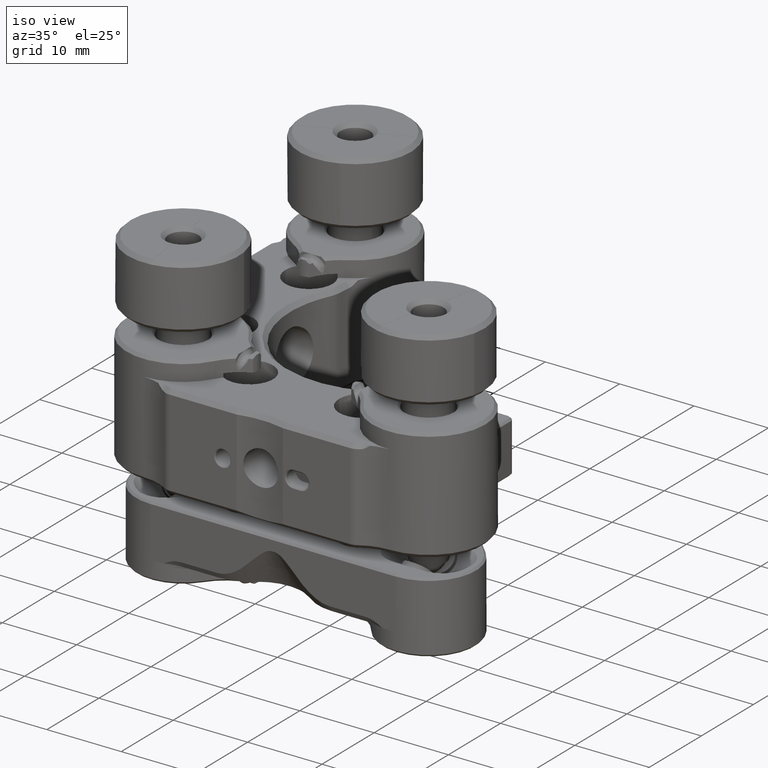
[diagram: clean part render]
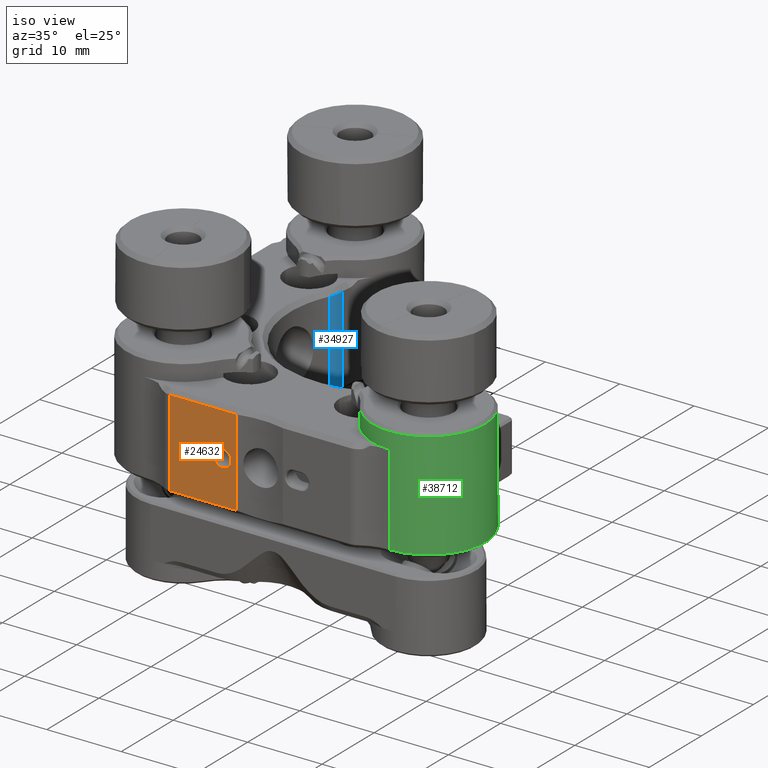
[diagram: same view with three faces highlighted in distinct colors, each labeled with its STEP entity id]
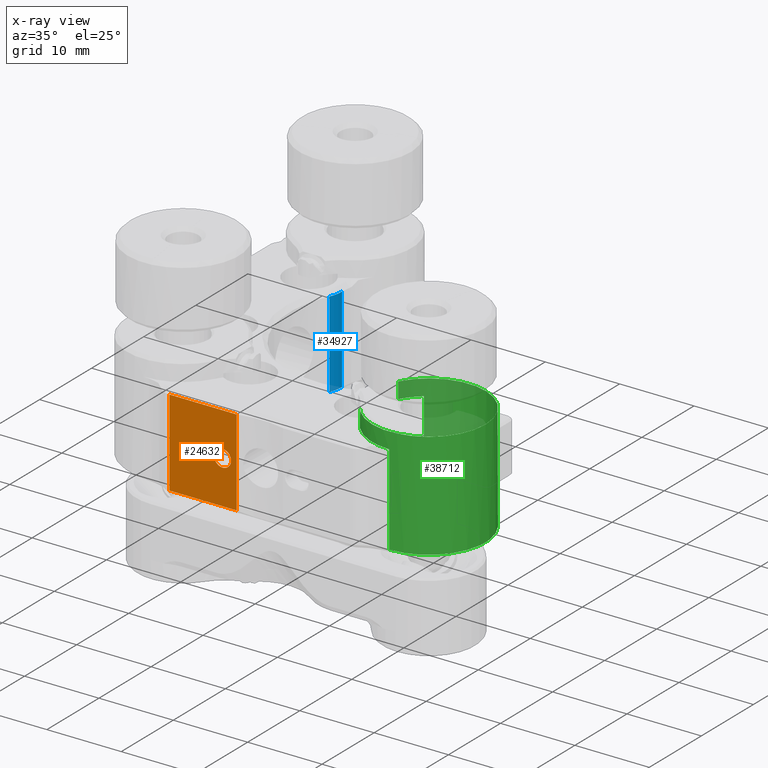
[diagram: x-ray of the same camera — body ghosted, the three highlighted faces saturated]
A machine part, iso view with three faces highlighted in distinct colors.
The next image is the same camera in x-ray (body ghosted, the three faces saturated) — at least one of them is partly hidden behind the body in this view.
Their STEP definitions:

[orange] entity #24632 — the highlighted planar face has unit normal (-0, 1, 0).
#3554 = CARTESIAN_POINT ( 'NONE',  ( 13.20522010323968765, 3.224097397248994135, 37.67726476518770795 ) ) ;
#4283 = VERTEX_POINT ( 'NONE', #27369 ) ;
#6317 = CARTESIAN_POINT ( 'NONE',  ( 22.26808663600309401, 3.224097397249097163, 37.66815044486158826 ) ) ;
#9385 = LINE ( 'NONE', #29770, #62764 ) ;
#10792 = FACE_OUTER_BOUND ( 'NONE', #58960, .T. ) ;
#11140 = ORIENTED_EDGE ( 'NONE', *, *, #48067, .F. ) ;
#11501 = CARTESIAN_POINT ( 'NONE',  ( 22.19201083773976180, 3.224097397249096719, 37.67497791269150298 ) ) ;
#12311 = AXIS2_PLACEMENT_3D ( 'NONE', #46376, #51225, #14766 ) ;
#12557 = EDGE_CURVE ( 'NONE', #56442, #4283, #34723, .T. ) ;
#13433 = EDGE_LOOP ( 'NONE', ( #40842 ) ) ;
#13895 = VECTOR ( 'NONE', #54446, 1000.000000000000000 ) ;
#13963 = CARTESIAN_POINT ( 'NONE',  ( 13.20522010324008555, 3.224097397267365217, 26.00970909684256327 ) ) ;
#14559 = DIRECTION ( 'NONE',  ( 1.000000000000000000, 1.225024136250500631E-14, -0.000000000000000000 ) ) ;
#14766 = DIRECTION ( 'NONE',  ( -1.000000000000000000, -1.225024136250500631E-14, 0.000000000000000000 ) ) ;
#14982 = B_SPLINE_CURVE_WITH_KNOTS ( 'NONE', 3,
 ( #60035, #35448, #16658, #11501, #16022, #46432, #6317 ),
 .UNSPECIFIED., .F., .F.,
 ( 4, 3, 4 ),
 ( 3.852788200805223628E-13, 7.615534923546122040E-05, 0.0001525312831660689014 ),
 .UNSPECIFIED. ) ;
#16022 = CARTESIAN_POINT ( 'NONE',  ( 22.21742399155531444, 3.224097397249097163, 37.67342564135586969 ) ) ;
#16281 = FACE_BOUND ( 'NONE', #13433, .T. ) ;
#16597 = PLANE ( 'NONE',  #12311 ) ;
#16658 = CARTESIAN_POINT ( 'NONE',  ( 22.16667294438927627, 3.224097397249096275, 37.67652558701161780 ) ) ;
#17634 = VECTOR ( 'NONE', #64020, 1000.000000000000000 ) ;
#17666 = ORIENTED_EDGE ( 'NONE', *, *, #12557, .F. ) ;
#19455 = VECTOR ( 'NONE', #55612, 1000.000000000000000 ) ;
#22356 = ORIENTED_EDGE ( 'NONE', *, *, #27112, .F. ) ;
#22991 = VERTEX_POINT ( 'NONE', #44612 ) ;
#24565 = EDGE_CURVE ( 'NONE', #33742, #33742, #43279, .T. ) ;
#24632 = ADVANCED_FACE ( 'NONE', ( #10792, #16281 ), #16597, .F. ) ;
#27112 = EDGE_CURVE ( 'NONE', #4283, #33593, #50113, .T. ) ;
#27236 = CARTESIAN_POINT ( 'NONE',  ( 22.26808663600309401, 3.224097397249097163, 37.66815044486158826 ) ) ;
#27369 = CARTESIAN_POINT ( 'NONE',  ( 22.26808663600308336, 3.224097397249094499, 26.00970909685331023 ) ) ;
#29718 = LINE ( 'NONE', #39739, #17634 ) ;
#29770 = CARTESIAN_POINT ( 'NONE',  ( 13.20522010324008555, 3.224097397248986585, 37.67726476518769374 ) ) ;
#31487 = DIRECTION ( 'NONE',  ( 0.000000000000000000, -1.000000000000000000, 0.000000000000000000 ) ) ;
#33593 = VERTEX_POINT ( 'NONE', #13963 ) ;
#33742 = VERTEX_POINT ( 'NONE', #57693 ) ;
#34406 = VERTEX_POINT ( 'NONE', #3554 ) ;
#34723 = LINE ( 'NONE', #58338, #13895 ) ;
#35448 = CARTESIAN_POINT ( 'NONE',  ( 22.14127368918376959, 3.224097397249095387, 37.67701199796599099 ) ) ;
#39739 = CARTESIAN_POINT ( 'NONE',  ( 13.20522010324008555, 3.224097397248986585, 40.74170909685329178 ) ) ;
#40842 = ORIENTED_EDGE ( 'NONE', *, *, #24565, .F. ) ;
#41218 = ORIENTED_EDGE ( 'NONE', *, *, #41672, .F. ) ;
#41672 = EDGE_CURVE ( 'NONE', #34406, #22991, #9385, .T. ) ;
#43279 = CIRCLE ( 'NONE', #61896, 1.142999999956373358 ) ;
#44612 = CARTESIAN_POINT ( 'NONE',  ( 22.11588983087386495, 3.224097401635127813, 37.67726474228278022 ) ) ;
#46376 = CARTESIAN_POINT ( 'NONE',  ( 13.20522010324008555, 3.224097397248986585, 40.74170909685329178 ) ) ;
#46432 = CARTESIAN_POINT ( 'NONE',  ( 22.24280443901282212, 3.224097397249102048, 37.67115850877338801 ) ) ;
#48067 = EDGE_CURVE ( 'NONE', #33593, #34406, #29718, .T. ) ;
#50113 = LINE ( 'NONE', #60152, #19455 ) ;
#51225 = DIRECTION ( 'NONE',  ( -1.225024136250500631E-14, 1.000000000000000000, 0.000000000000000000 ) ) ;
#54446 = DIRECTION ( 'NONE',  ( -0.000000000000000000, -0.000000000000000000, -1.000000000000000000 ) ) ;
#55441 = DIRECTION ( 'NONE',  ( 0.000000000000000000, 0.000000000000000000, -1.000000000000000000 ) ) ;
#55612 = DIRECTION ( 'NONE',  ( -1.000000000000000000, -6.699350745119177310E-15, -6.699350745119268029E-15 ) ) ;
#56442 = VERTEX_POINT ( 'NONE', #27236 ) ;
#57693 = CARTESIAN_POINT ( 'NONE',  ( 20.36735173361216766, 3.224097397335722981, 30.70870909689692141 ) ) ;
#58063 = EDGE_CURVE ( 'NONE', #22991, #56442, #14982, .T. ) ;
#58338 = CARTESIAN_POINT ( 'NONE',  ( 22.26808663600309046, 3.224097397249097607, 40.74170909685329178 ) ) ;
#58960 = EDGE_LOOP ( 'NONE', ( #41218, #11140, #22356, #17666, #59199 ) ) ;
#59199 = ORIENTED_EDGE ( 'NONE', *, *, #58063, .F. ) ;
#60035 = CARTESIAN_POINT ( 'NONE',  ( 22.11588983087386495, 3.224097401635127813, 37.67726474228278022 ) ) ;
#60152 = CARTESIAN_POINT ( 'NONE',  ( 28.47421683122138347, 3.224097397249132246, 26.00970909685335286 ) ) ;
#60938 = CARTESIAN_POINT ( 'NONE',  ( 20.36735173361216766, 3.224097397335722981, 31.85170909685329477 ) ) ;
#61896 = AXIS2_PLACEMENT_3D ( 'NONE', #60938, #31487, #55441 ) ;
#62764 = VECTOR ( 'NONE', #14559, 1000.000000000000000 ) ;
#64020 = DIRECTION ( 'NONE',  ( 0.000000000000000000, 0.000000000000000000, 1.000000000000000000 ) ) ;

[blue] entity #34927 — the highlighted cylindrical surface (partial cylindrical patch) has radius 4.4676 mm, axis along (-0, -0, -1).
#1300 = VERTEX_POINT ( 'NONE', #52665 ) ;
#1470 = CARTESIAN_POINT ( 'NONE',  ( 12.91758081580430328, 34.37189935931454698, 37.61443626234245130 ) ) ;
#3015 = DIRECTION ( 'NONE',  ( 0.000000000000000000, 0.000000000000000000, 1.000000000000000000 ) ) ;
#3999 = VERTEX_POINT ( 'NONE', #59753 ) ;
#4616 = ORIENTED_EDGE ( 'NONE', *, *, #40311, .T. ) ;
#5477 = EDGE_CURVE ( 'NONE', #24430, #5968, #42088, .T. ) ;
#5968 = VERTEX_POINT ( 'NONE', #38181 ) ;
#8186 = CARTESIAN_POINT ( 'NONE',  ( 13.32878398817777565, 36.24620216945419315, 40.74170909685329178 ) ) ;
#8879 = VECTOR ( 'NONE', #46946, 1000.000000000000000 ) ;
#10208 = CARTESIAN_POINT ( 'NONE',  ( 13.32886005689291942, 36.08473716884030580, 37.61209175667095650 ) ) ;
#11176 = CARTESIAN_POINT ( 'NONE',  ( 13.28544713210314931, 35.60267511960938691, 37.61336468931036592 ) ) ;
#12158 = ORIENTED_EDGE ( 'NONE', *, *, #21709, .T. ) ;
#19612 = CARTESIAN_POINT ( 'NONE',  ( 12.91758081580430328, 34.37189935931454698, 37.61443626234245130 ) ) ;
#20799 = VECTOR ( 'NONE', #3015, 1000.000000000000000 ) ;
#21709 = EDGE_CURVE ( 'NONE', #5968, #3999, #58765, .T. ) ;
#24430 = VERTEX_POINT ( 'NONE', #19612 ) ;
#25456 = CARTESIAN_POINT ( 'NONE',  ( 8.861151733612530279, 36.24409739724925572, 26.00970909685333154 ) ) ;
#26059 = CARTESIAN_POINT ( 'NONE',  ( 13.14725708436439611, 34.97328815005720060, 37.61338099199227969 ) ) ;
#30913 = CARTESIAN_POINT ( 'NONE',  ( 13.19044243423517671, 35.12923860083885330, 37.61321461623605700 ) ) ;
#33468 = DIRECTION ( 'NONE',  ( -0.000000000000000000, -0.000000000000000000, -1.000000000000000000 ) ) ;
#34808 = CARTESIAN_POINT ( 'NONE',  ( 13.25946574519857712, 35.44378373254195225, 37.61321620768441676 ) ) ;
#34927 = ADVANCED_FACE ( 'NONE', ( #38010 ), #63235, .T. ) ;
#35006 = EDGE_LOOP ( 'NONE', ( #12158, #4616, #39548, #46161 ) ) ;
#35772 = CARTESIAN_POINT ( 'NONE',  ( 13.32878398817777565, 36.24620216945418605, 37.61443626234245130 ) ) ;
#35814 = DIRECTION ( 'NONE',  ( -1.000000000000000000, 0.000000000000000000, 0.000000000000000000 ) ) ;
#37230 = CARTESIAN_POINT ( 'NONE',  ( 12.91758081580429973, 34.37189935931453988, 40.74170909685329178 ) ) ;
#37311 = LINE ( 'NONE', #8186, #20799 ) ;
#38010 = FACE_OUTER_BOUND ( 'NONE', #35006, .T. ) ;
#38181 = CARTESIAN_POINT ( 'NONE',  ( 12.91758081576982420, 34.37189935932889284, 26.00970909681416998 ) ) ;
#39548 = ORIENTED_EDGE ( 'NONE', *, *, #47102, .T. ) ;
#40311 = EDGE_CURVE ( 'NONE', #3999, #1300, #37311, .T. ) ;
#42088 = LINE ( 'NONE', #37230, #8879 ) ;
#42859 = DIRECTION ( 'NONE',  ( -1.000000000000000000, 0.000000000000000000, 0.000000000000000000 ) ) ;
#46161 = ORIENTED_EDGE ( 'NONE', *, *, #5477, .T. ) ;
#46946 = DIRECTION ( 'NONE',  ( -0.000000000000000000, -0.000000000000000000, -1.000000000000000000 ) ) ;
#47102 = EDGE_CURVE ( 'NONE', #1300, #24430, #61414, .T. ) ;
#48360 = CARTESIAN_POINT ( 'NONE',  ( 8.861151733612530279, 36.24409739724925572, 40.74170909685329178 ) ) ;
#50367 = DIRECTION ( 'NONE',  ( 0.000000000000000000, 0.000000000000000000, 1.000000000000000000 ) ) ;
#50645 = CARTESIAN_POINT ( 'NONE',  ( 12.98524410734789569, 34.51850315765899779, 37.61213357800246371 ) ) ;
#52665 = CARTESIAN_POINT ( 'NONE',  ( 13.32878398817777565, 36.24620216945418605, 37.61443626234245130 ) ) ;
#54537 = CARTESIAN_POINT ( 'NONE',  ( 13.04468351758693778, 34.66811610517485320, 37.61405474631823154 ) ) ;
#55498 = CARTESIAN_POINT ( 'NONE',  ( 13.32020681930699979, 35.92372253228590040, 37.61406987381476341 ) ) ;
#56111 = AXIS2_PLACEMENT_3D ( 'NONE', #48360, #33468, #42859 ) ;
#58765 = CIRCLE ( 'NONE', #60807, 4.467632750360952976 ) ;
#59753 = CARTESIAN_POINT ( 'NONE',  ( 13.32878382687782448, 36.24688682986094079, 26.00970909684721732 ) ) ;
#60807 = AXIS2_PLACEMENT_3D ( 'NONE', #25456, #50367, #35814 ) ;
#61414 = B_SPLINE_CURVE_WITH_KNOTS ( 'NONE', 3,
 ( #35772, #10208, #55498, #11176, #34808, #30913, #26059, #54537, #50645, #1470 ),
 .UNSPECIFIED., .F., .F.,
 ( 4, 2, 2, 2, 4 ),
 ( 0.000000000000000000, 0.0004837009051559556616, 0.0009674018103119113232, 0.001451102715467866931, 0.001934803620623822646 ),
 .UNSPECIFIED. ) ;
#63235 = CYLINDRICAL_SURFACE ( 'NONE', #56111, 4.467632750360952976 ) ;

[green] entity #38712 — the highlighted cylindrical surface (partial cylindrical patch) has radius 7.62 mm, axis along (-0, -0, -1).
#1334 = EDGE_CURVE ( 'NONE', #63899, #62554, #12156, .T. ) ;
#3752 = DIRECTION ( 'NONE',  ( -0.000000000000000000, -0.000000000000000000, -1.000000000000000000 ) ) ;
#3954 = DIRECTION ( 'NONE',  ( -0.000000000000000000, -0.000000000000000000, -1.000000000000000000 ) ) ;
#4056 = CARTESIAN_POINT ( 'NONE',  ( 37.07853345739173534, 18.03011444361667159, 38.20170909685329264 ) ) ;
#4516 = CARTESIAN_POINT ( 'NONE',  ( 35.19131634220174476, 15.76245352512777664, 40.74170909685329178 ) ) ;
#7871 = VERTEX_POINT ( 'NONE', #4056 ) ;
#8234 = CARTESIAN_POINT ( 'NONE',  ( 41.88115173361249788, 4.494097397225560897, 26.00970909686026999 ) ) ;
#8621 = DIRECTION ( 'NONE',  ( 0.000000000000000000, 0.000000000000000000, 1.000000000000000000 ) ) ;
#8670 = CARTESIAN_POINT ( 'NONE',  ( 41.88115173361250498, 4.494097397249060322, 38.20170909685330685 ) ) ;
#11153 = AXIS2_PLACEMENT_3D ( 'NONE', #26324, #25357, #45093 ) ;
#12156 = CIRCLE ( 'NONE', #28695, 7.620000000000015206 ) ;
#13862 = EDGE_CURVE ( 'NONE', #63899, #7871, #51670, .T. ) ;
#14335 = ORIENTED_EDGE ( 'NONE', *, *, #26741, .T. ) ;
#14566 = CARTESIAN_POINT ( 'NONE',  ( 35.19131634220192950, 8.465741269370161248, 38.20170909685329264 ) ) ;
#14846 = CARTESIAN_POINT ( 'NONE',  ( 35.19131634220195792, 8.465741269370088418, 40.74170909685329178 ) ) ;
#15159 = LINE ( 'NONE', #14846, #34987 ) ;
#16338 = DIRECTION ( 'NONE',  ( 0.000000000000000000, 0.000000000000000000, 1.000000000000000000 ) ) ;
#17507 = VECTOR ( 'NONE', #53047, 1000.000000000000000 ) ;
#18123 = ORIENTED_EDGE ( 'NONE', *, *, #1334, .F. ) ;
#18770 = CARTESIAN_POINT ( 'NONE',  ( 41.88115173361249788, 4.494097397249046111, 40.74170909685329178 ) ) ;
#19248 = FACE_OUTER_BOUND ( 'NONE', #58330, .T. ) ;
#19724 = AXIS2_PLACEMENT_3D ( 'NONE', #26380, #16338, #36090 ) ;
#20014 = DIRECTION ( 'NONE',  ( -0.000000000000000000, -0.000000000000000000, -1.000000000000000000 ) ) ;
#20773 = CARTESIAN_POINT ( 'NONE',  ( 35.19131634220198634, 8.465741269370097299, 40.36070909685334129 ) ) ;
#20807 = CIRCLE ( 'NONE', #19724, 7.620000000000022311 ) ;
#21866 = AXIS2_PLACEMENT_3D ( 'NONE', #24437, #3752, #59377 ) ;
#22716 = CARTESIAN_POINT ( 'NONE',  ( 35.19131634220186555, 15.76245352512778375, 38.20170909685330685 ) ) ;
#23003 = ORIENTED_EDGE ( 'NONE', *, *, #46936, .T. ) ;
#23079 = EDGE_CURVE ( 'NONE', #53385, #54096, #15159, .T. ) ;
#23318 = DIRECTION ( 'NONE',  ( -0.000000000000000000, -0.000000000000000000, -1.000000000000000000 ) ) ;
#24437 = CARTESIAN_POINT ( 'NONE',  ( 41.88115173361241261, 12.11409739724913237, 40.74170909685329178 ) ) ;
#25154 = VERTEX_POINT ( 'NONE', #22716 ) ;
#25357 = DIRECTION ( 'NONE',  ( 0.000000000000000000, 0.000000000000000000, 1.000000000000000000 ) ) ;
#25506 = CARTESIAN_POINT ( 'NONE',  ( 35.19131634221706406, 15.76245352512070674, 40.36070909683668617 ) ) ;
#26324 = CARTESIAN_POINT ( 'NONE',  ( 41.88115173361241261, 12.11409739724913237, 38.20170909685329264 ) ) ;
#26380 = CARTESIAN_POINT ( 'NONE',  ( 41.88115173361241261, 12.11409739724913237, 38.20170909685329264 ) ) ;
#26741 = EDGE_CURVE ( 'NONE', #25154, #59935, #48838, .T. ) ;
#28030 = ORIENTED_EDGE ( 'NONE', *, *, #13862, .T. ) ;
#28695 = AXIS2_PLACEMENT_3D ( 'NONE', #38099, #38419, #33886 ) ;
#33886 = DIRECTION ( 'NONE',  ( 1.000000000000000000, 0.000000000000000000, 0.000000000000000000 ) ) ;
#34987 = VECTOR ( 'NONE', #20014, 1000.000000000000000 ) ;
#35924 = CIRCLE ( 'NONE', #11153, 7.620000000000022311 ) ;
#36090 = DIRECTION ( 'NONE',  ( -1.000000000000000000, -7.967889981520744942E-15, 0.000000000000000000 ) ) ;
#37167 = EDGE_CURVE ( 'NONE', #54096, #51816, #35924, .T. ) ;
#37793 = EDGE_CURVE ( 'NONE', #59935, #53385, #54566, .T. ) ;
#37885 = LINE ( 'NONE', #18770, #56046 ) ;
#38099 = CARTESIAN_POINT ( 'NONE',  ( 41.88115173361241261, 12.11409739724913237, 26.00970909685332444 ) ) ;
#38419 = DIRECTION ( 'NONE',  ( 0.000000000000000000, 0.000000000000000000, -1.000000000000000000 ) ) ;
#38712 = ADVANCED_FACE ( 'NONE', ( #19248 ), #38994, .T. ) ;
#38883 = DIRECTION ( 'NONE',  ( -1.000000000000000000, 0.000000000000000000, 0.000000000000000000 ) ) ;
#38994 = CYLINDRICAL_SURFACE ( 'NONE', #21866, 7.620000000000022311 ) ;
#41655 = ORIENTED_EDGE ( 'NONE', *, *, #37167, .T. ) ;
#41854 = ORIENTED_EDGE ( 'NONE', *, *, #53842, .T. ) ;
#45093 = DIRECTION ( 'NONE',  ( -1.000000000000000000, 0.000000000000000000, 0.000000000000000000 ) ) ;
#46794 = VECTOR ( 'NONE', #8621, 1000.000000000000000 ) ;
#46936 = EDGE_CURVE ( 'NONE', #7871, #25154, #20807, .T. ) ;
#48838 = LINE ( 'NONE', #4516, #17507 ) ;
#51625 = ORIENTED_EDGE ( 'NONE', *, *, #23079, .T. ) ;
#51670 = LINE ( 'NONE', #57165, #46794 ) ;
#51816 = VERTEX_POINT ( 'NONE', #8670 ) ;
#52494 = AXIS2_PLACEMENT_3D ( 'NONE', #57976, #3954, #38883 ) ;
#53047 = DIRECTION ( 'NONE',  ( 0.000000000000000000, 0.000000000000000000, 1.000000000000000000 ) ) ;
#53385 = VERTEX_POINT ( 'NONE', #20773 ) ;
#53842 = EDGE_CURVE ( 'NONE', #51816, #62554, #37885, .T. ) ;
#54096 = VERTEX_POINT ( 'NONE', #14566 ) ;
#54566 = CIRCLE ( 'NONE', #52494, 7.620000000000022311 ) ;
#55440 = CARTESIAN_POINT ( 'NONE',  ( 37.07853345738199380, 18.03011444361563420, 26.00970909687101340 ) ) ;
#56046 = VECTOR ( 'NONE', #23318, 1000.000000000000000 ) ;
#57165 = CARTESIAN_POINT ( 'NONE',  ( 37.07853345739172823, 18.03011444361667870, 40.74170909685329178 ) ) ;
#57976 = CARTESIAN_POINT ( 'NONE',  ( 41.88115173361241261, 12.11409739724913237, 40.36070909685331287 ) ) ;
#58330 = EDGE_LOOP ( 'NONE', ( #28030, #23003, #14335, #60559, #51625, #41655, #41854, #18123 ) ) ;
#59377 = DIRECTION ( 'NONE',  ( -1.000000000000000000, 0.000000000000000000, 0.000000000000000000 ) ) ;
#59935 = VERTEX_POINT ( 'NONE', #25506 ) ;
#60559 = ORIENTED_EDGE ( 'NONE', *, *, #37793, .T. ) ;
#62554 = VERTEX_POINT ( 'NONE', #8234 ) ;
#63899 = VERTEX_POINT ( 'NONE', #55440 ) ;